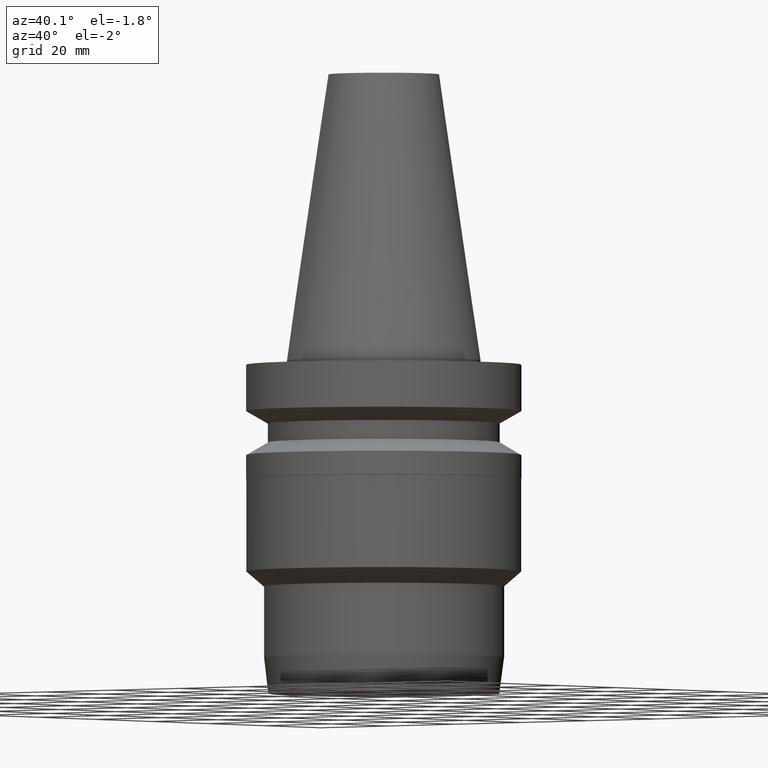
[diagram: clean part render]
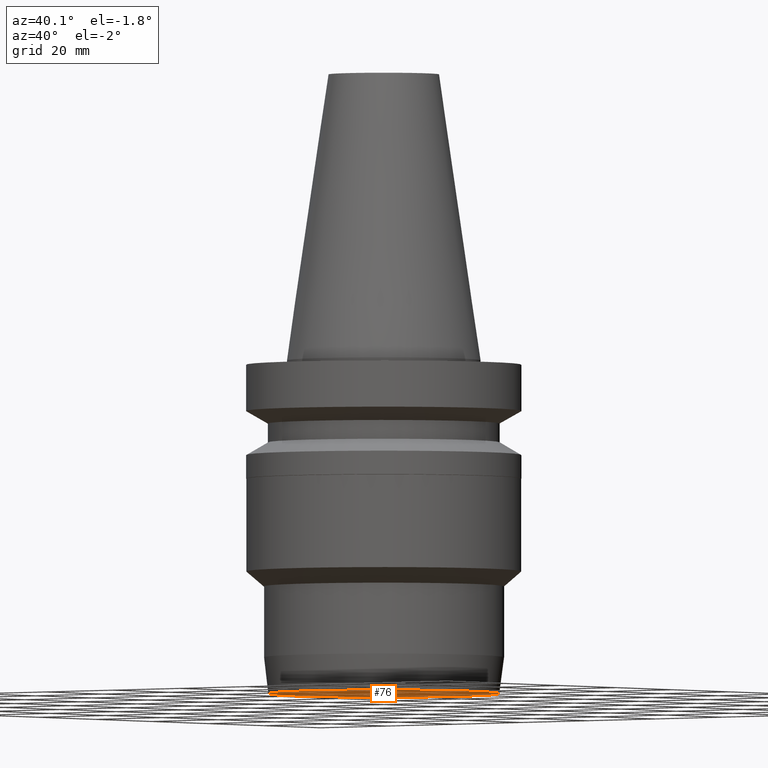
[diagram: same view with one face highlighted and labeled with its STEP entity id]
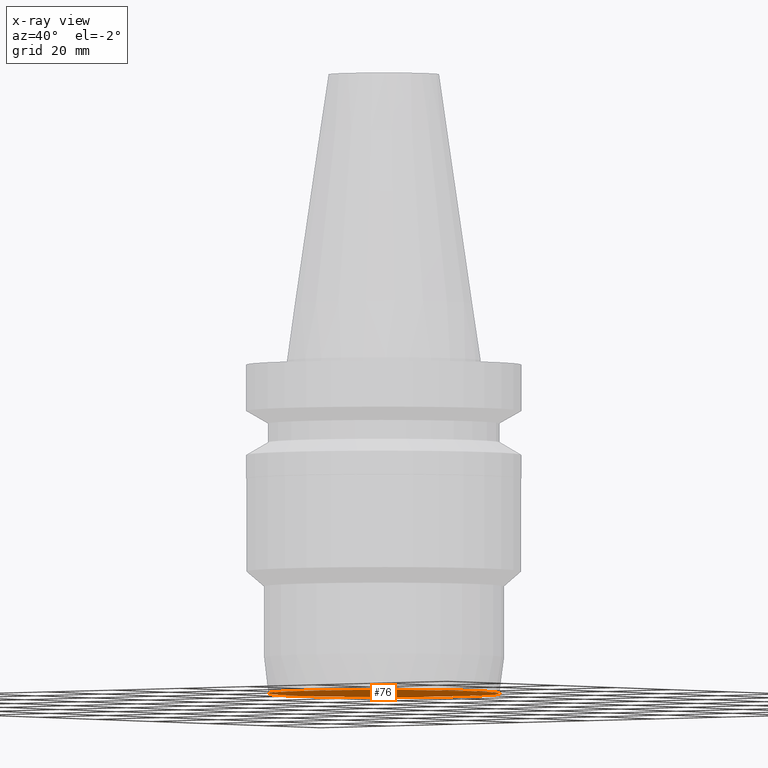
[diagram: x-ray of the same camera — body ghosted, the highlighted face saturated]
A machine part, auxiliary view. The second image highlights one B-rep face of the part: STEP entity #76.
The next image is the same camera in x-ray: the body ghosted, the highlighted face saturated — about 0% of this face is hidden behind the body in this view.
In plain terms, the highlighted planar face has unit normal (0, 0, -1).
Its self-contained STEP definition (entity closure, byte-faithful):
#62=EDGE_CURVE('Unnamed[1]',#159,#159,#160,.T.);
#76=ADVANCED_FACE('Unnamed[1]',(#179),#180,.T.);
#159=VERTEX_POINT('',#287);
#160=CIRCLE('',#288,26.4085690956189);
#179=FACE_OUTER_BOUND('',#311,.T.);
#180=PLANE('',#312);
#287=CARTESIAN_POINT('',(4.66590430475143E-015,26.4085690956189,-76.2000000000003));
#288=AXIS2_PLACEMENT_3D('',#432,#433,#434);
#311=EDGE_LOOP('',(#452));
#312=AXIS2_PLACEMENT_3D('',#453,#454,#455);
#432=CARTESIAN_POINT('',(4.66590430475143E-015,-1.73661680100015E-014,-76.2000000000003));
#433=DIRECTION('',(6.12323399573677E-017,-6.62934875621782E-016,-1.0));
#434=DIRECTION('',(3.57659009428982E-032,1.0,-6.62934875621782E-016));
#452=ORIENTED_EDGE('',*,*,#62,.T.);
#453=CARTESIAN_POINT('',(4.66590430475143E-015,13.2042845478094,-76.2000000000003));
#454=DIRECTION('',(6.12323399573677E-017,1.22464679914735E-016,-1.0));
#455=DIRECTION('',(-1.23259516440783E-032,1.0,1.22464679914735E-016));